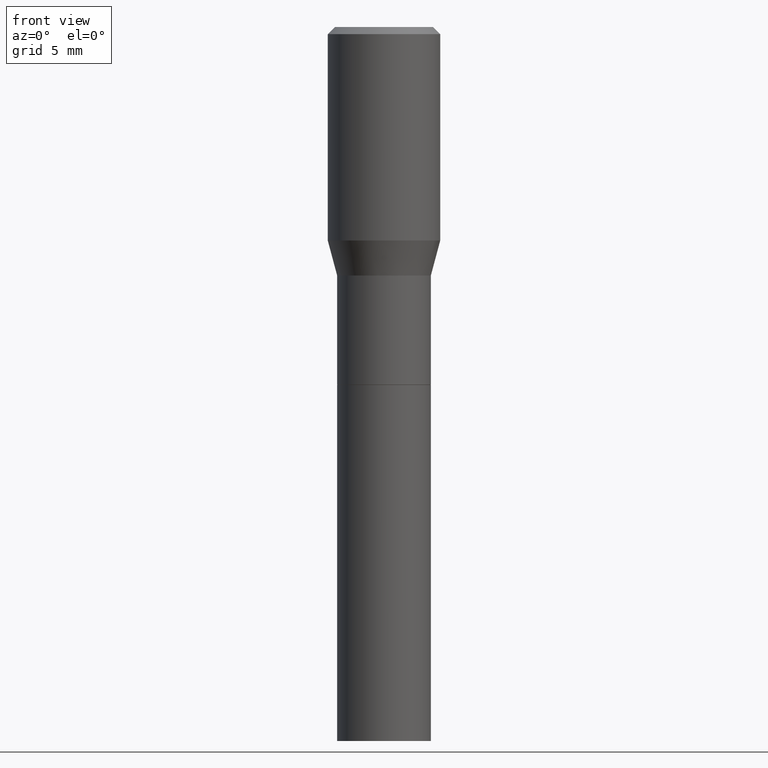
[diagram: clean part render]
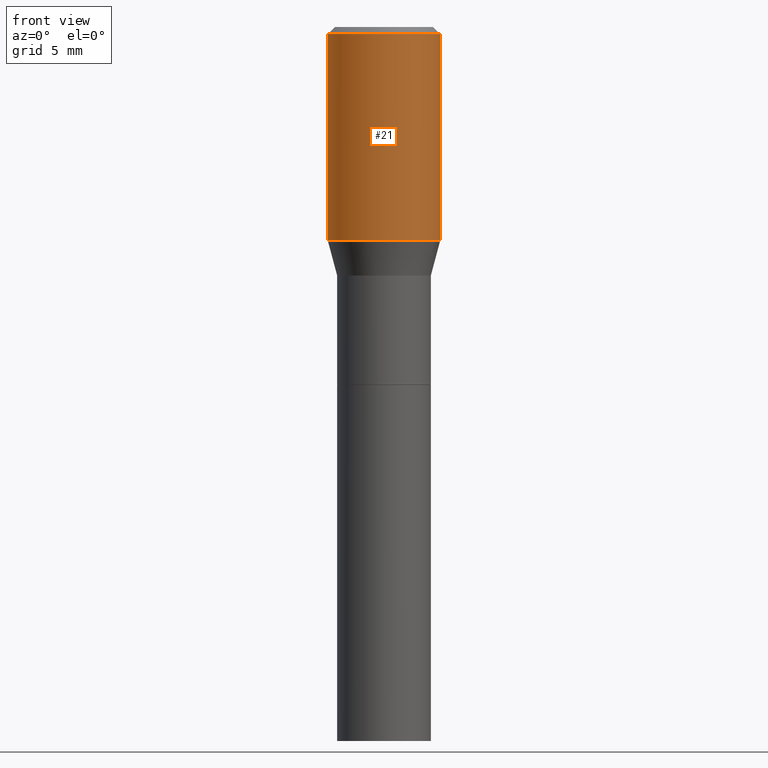
[diagram: same view with one face highlighted and labeled with its STEP entity id]
A machine part, front view. The second image highlights one B-rep face of the part: STEP entity #21.
In plain terms, the highlighted cylindrical surface (partial cylindrical patch) has radius 2.9997 mm, axis along (-0, 0, 1).
Its self-contained STEP definition (entity closure, byte-faithful):
#7 = CYLINDRICAL_SURFACE ( 'NONE', #117, 0.1180999999999999966 ) ;
#10 = DIRECTION ( 'NONE',  ( 1.000000000000000000, -6.982962677686266711E-15, 4.876176775795936353E-29 ) ) ;
#21 = ADVANCED_FACE ( 'NONE', ( #120 ), #7, .T. ) ;
#28 = CARTESIAN_POINT ( 'NONE',  ( -0.1180999999999999966, 2.971177144941290176E-17, -0.01499999999999999944 ) ) ;
#41 = ORIENTED_EDGE ( 'NONE', *, *, #245, .T. ) ;
#56 = CARTESIAN_POINT ( 'NONE',  ( -0.1180999999999999966, -7.273552079512053883E-16, -0.4486652016312720481 ) ) ;
#57 = CARTESIAN_POINT ( 'NONE',  ( 0.1180999999999999966, -8.770601123173952432E-16, -0.01499999999999999944 ) ) ;
#111 = LINE ( 'NONE', #144, #308 ) ;
#117 = AXIS2_PLACEMENT_3D ( 'NONE', #220, #148, #10 ) ;
#120 = FACE_OUTER_BOUND ( 'NONE', #145, .T. ) ;
#131 = DIRECTION ( 'NONE',  ( -2.445468806185136597E-29, 3.491481338843145583E-15, 1.000000000000000000 ) ) ;
#140 = ORIENTED_EDGE ( 'NONE', *, *, #342, .T. ) ;
#144 = CARTESIAN_POINT ( 'NONE',  ( -0.1180999999999999966, 8.391509709326782957E-16, -5.809262341591043784E-30 ) ) ;
#145 = EDGE_LOOP ( 'NONE', ( #430, #140, #41, #173 ) ) ;
#148 = DIRECTION ( 'NONE',  ( -2.445468806185136597E-29, 3.491481338843145583E-15, 1.000000000000000000 ) ) ;
#156 = EDGE_CURVE ( 'NONE', #215, #347, #111, .T. ) ;
#161 = DIRECTION ( 'NONE',  ( -2.445468806185136877E-29, 3.491481338843145188E-15, 1.000000000000000000 ) ) ;
#164 = DIRECTION ( 'NONE',  ( 1.000000000000000000, -6.982962677686266711E-15, 0.000000000000000000 ) ) ;
#168 = CARTESIAN_POINT ( 'NONE',  ( 1.097196755010040478E-29, -1.566506178883883684E-15, -0.4486652016312720481 ) ) ;
#173 = ORIENTED_EDGE ( 'NONE', *, *, #411, .F. ) ;
#176 = VECTOR ( 'NONE', #161, 39.37007874015748143 ) ;
#182 = CIRCLE ( 'NONE', #444, 0.1180999999999999966 ) ;
#213 = VERTEX_POINT ( 'NONE', #258 ) ;
#215 = VERTEX_POINT ( 'NONE', #56 ) ;
#217 = DIRECTION ( 'NONE',  ( -2.445468806185136597E-29, 3.491481338843145583E-15, 1.000000000000000000 ) ) ;
#220 = CARTESIAN_POINT ( 'NONE',  ( 0.000000000000000000, 0.000000000000000000, 0.000000000000000000 ) ) ;
#230 = DIRECTION ( 'NONE',  ( -2.445468806185136877E-29, 3.491481338843145188E-15, 1.000000000000000000 ) ) ;
#245 = EDGE_CURVE ( 'NONE', #213, #400, #381, .T. ) ;
#254 = CARTESIAN_POINT ( 'NONE',  ( 3.668203209277705088E-31, -5.237222008264718399E-17, -0.01499999999999999944 ) ) ;
#258 = CARTESIAN_POINT ( 'NONE',  ( 0.1180999999999999966, -2.391194071118632144E-15, -0.4486652016312720481 ) ) ;
#276 = DIRECTION ( 'NONE',  ( 1.000000000000000000, -6.982962677686269077E-15, 0.000000000000000000 ) ) ;
#308 = VECTOR ( 'NONE', #230, 39.37007874015748143 ) ;
#342 = EDGE_CURVE ( 'NONE', #215, #213, #374, .T. ) ;
#347 = VERTEX_POINT ( 'NONE', #28 ) ;
#374 = CIRCLE ( 'NONE', #440, 0.1180999999999999966 ) ;
#379 = CARTESIAN_POINT ( 'NONE',  ( 0.1180999999999999966, -8.246878922347480654E-16, 5.758764772215000440E-30 ) ) ;
#381 = LINE ( 'NONE', #379, #176 ) ;
#400 = VERTEX_POINT ( 'NONE', #57 ) ;
#411 = EDGE_CURVE ( 'NONE', #347, #400, #182, .T. ) ;
#430 = ORIENTED_EDGE ( 'NONE', *, *, #156, .F. ) ;
#440 = AXIS2_PLACEMENT_3D ( 'NONE', #168, #131, #276 ) ;
#444 = AXIS2_PLACEMENT_3D ( 'NONE', #254, #217, #164 ) ;